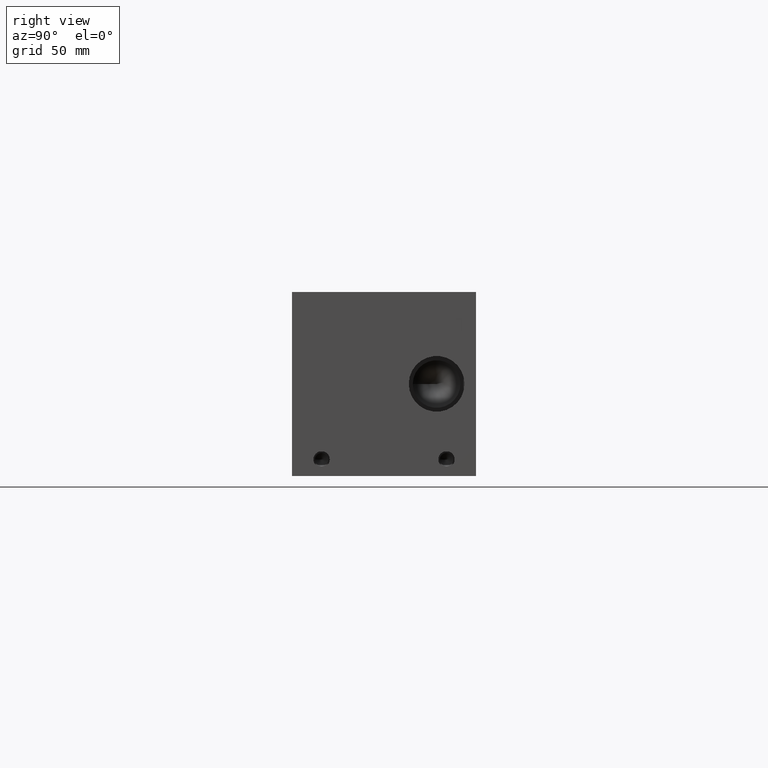
[diagram: clean part render]
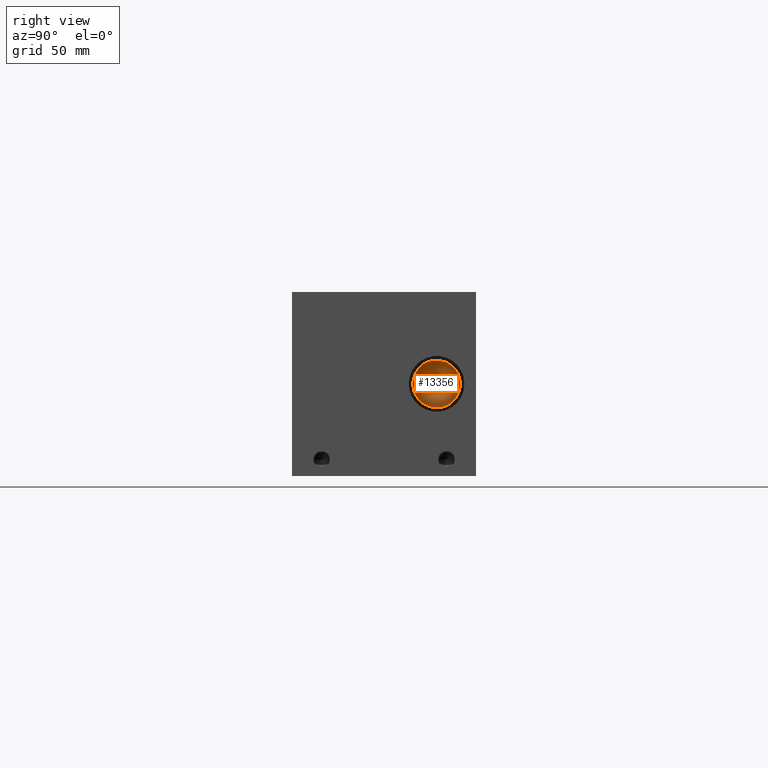
[diagram: same view with one face highlighted and labeled with its STEP entity id]
A machine part, right view. The second image highlights one B-rep face of the part: STEP entity #13356.
In plain terms, the highlighted conical surface has half-angle 60 deg.
Its self-contained STEP definition (entity closure, byte-faithful):
#92=CONICAL_SURFACE('',#13914,5.7531,1.0471975511966);
#163=CIRCLE('',#13915,11.5062);
#164=CIRCLE('',#13916,11.5062);
#1604=FACE_OUTER_BOUND('',#2361,.T.);
#2361=EDGE_LOOP('',(#11096,#11097,#11098,#11099));
#3689=LINE('',#22427,#4918);
#4918=VECTOR('',#16202,5.7531);
#6038=VERTEX_POINT('',#22423);
#6039=VERTEX_POINT('',#22424);
#6040=VERTEX_POINT('',#22426);
#7815=EDGE_CURVE('',#6038,#6039,#163,.T.);
#7816=EDGE_CURVE('',#6039,#6040,#3689,.T.);
#7817=EDGE_CURVE('',#6039,#6038,#164,.T.);
#11096=ORIENTED_EDGE('',*,*,#7815,.T.);
#11097=ORIENTED_EDGE('',*,*,#7816,.T.);
#11098=ORIENTED_EDGE('',*,*,#7816,.F.);
#11099=ORIENTED_EDGE('',*,*,#7817,.T.);
#13356=ADVANCED_FACE('',(#1604),#92,.F.);
#13914=AXIS2_PLACEMENT_3D('',#22422,#16198,#16199);
#13915=AXIS2_PLACEMENT_3D('',#22425,#16200,#16201);
#13916=AXIS2_PLACEMENT_3D('',#22428,#16203,#16204);
#16198=DIRECTION('center_axis',(1.,0.,0.));
#16199=DIRECTION('ref_axis',(0.,1.,0.));
#16200=DIRECTION('center_axis',(1.,0.,0.));
#16201=DIRECTION('ref_axis',(0.,1.,0.));
#16202=DIRECTION('',(-0.5,0.866025403784439,1.06057523872491E-16));
#16203=DIRECTION('center_axis',(1.,0.,0.));
#16204=DIRECTION('ref_axis',(0.,1.,0.));
#22422=CARTESIAN_POINT('Origin',(310.364536166325,69.85,44.45));
#22423=CARTESIAN_POINT('',(313.68609,81.3562,44.45));
#22424=CARTESIAN_POINT('',(313.68609,58.3438,44.45));
#22425=CARTESIAN_POINT('Origin',(313.68609,69.85,44.45));
#22426=CARTESIAN_POINT('',(307.04298233265,69.85,44.45));
#22427=CARTESIAN_POINT('',(310.364536166325,64.0969,44.45));
#22428=CARTESIAN_POINT('Origin',(313.68609,69.85,44.45));